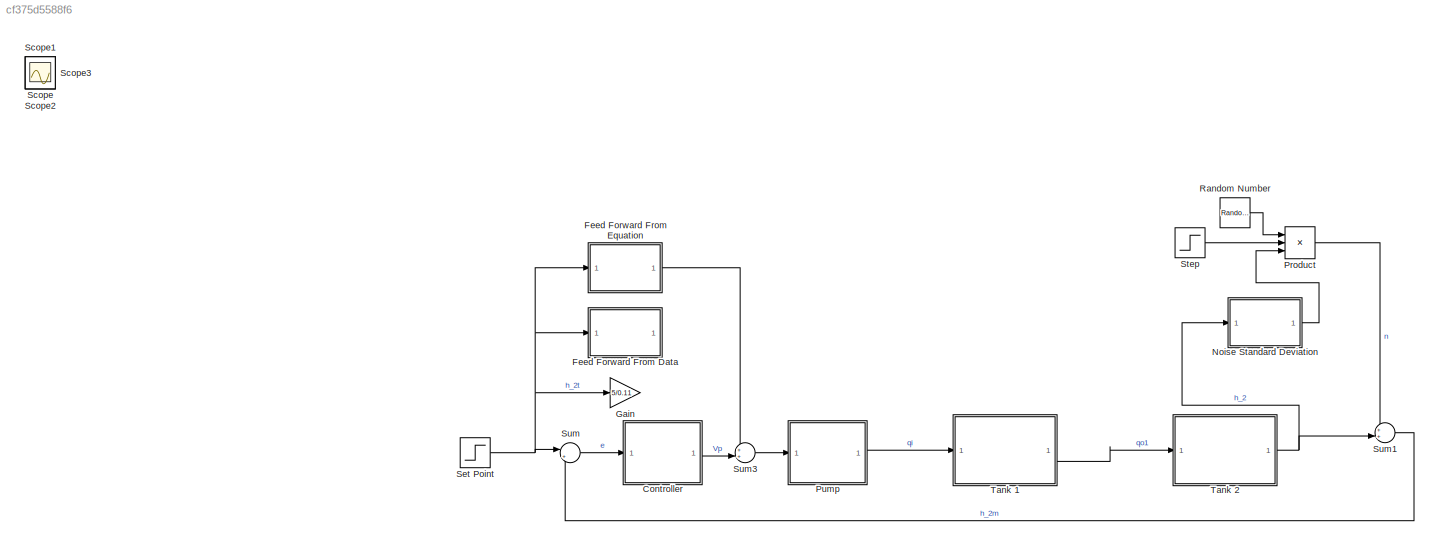
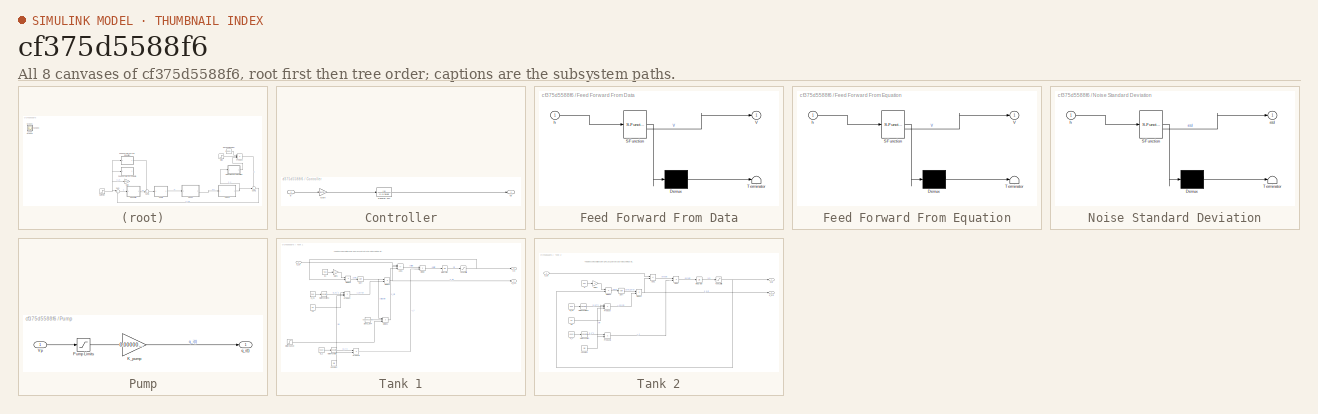
[diagram: thumbnail index - all 8 canvases of the model, root first then tree order]
MODEL slx_cf375d5588f6
KIND model
CONFIG AbsTol = auto
CONFIG EnableMultiTasking = off
CONFIG FixedStep = auto
CONFIG MaxStep = auto
CONFIG MinStep = auto
CONFIG RelTol = 1e-9
CONFIG SampleTimeConstraint = Unconstrained
CONFIG SolverName = VariableStepAuto
CONFIG StartTime = 0.0
CONFIG StopTime = 500
BLOCK [SubSystem] Controller
BLOCK [Gain] Controller/Gain
  Gain = 6.047e-3
BLOCK [TransferFcn] Controller/Transfer Fcn
  Denominator = [1 0.3648]
BLOCK [Outport] Controller/Vp
BLOCK [Inport] Controller/e
BLOCK [SubSystem] Feed Forward From Data
  ErrorFcn = Stateflow.Translate.translate
  PermitHierarchicalResolution = ExplicitOnly
  SFBlockType = MATLAB Function
  TreatAsAtomicUnit = on
BLOCK [Demux] Feed Forward From Data/ Demux 
  Outputs = 1
BLOCK [S-Function] Feed Forward From Data/ SFunction 
  EnableBusSupport = on
  FunctionName = sf_sfun
  PortCounts = [1 2]
  SFcnIsStateOwnerBlock = off
  SFunctionDeploymentMode = off
  Tag = Stateflow S-Function 2
BLOCK [Terminator] Feed Forward From Data/ Terminator 
BLOCK [Outport] Feed Forward From Data/V
BLOCK [Inport] Feed Forward From Data/h
BLOCK [SubSystem] Feed Forward From Equation
  ErrorFcn = Stateflow.Translate.translate
  PermitHierarchicalResolution = ExplicitOnly
  SFBlockType = MATLAB Function
  TreatAsAtomicUnit = on
BLOCK [Demux] Feed Forward From Equation/ Demux 
  Outputs = 1
BLOCK [S-Function] Feed Forward From Equation/ SFunction 
  EnableBusSupport = on
  FunctionName = sf_sfun
  PortCounts = [1 2]
  SFcnIsStateOwnerBlock = off
  SFunctionDeploymentMode = off
  Tag = Stateflow S-Function 1
BLOCK [Terminator] Feed Forward From Equation/ Terminator 
BLOCK [Outport] Feed Forward From Equation/V
BLOCK [Inport] Feed Forward From Equation/h
BLOCK [Gain] Gain
  Gain = 5/0.11
BLOCK [SubSystem] Noise Standard Deviation
  ErrorFcn = Stateflow.Translate.translate
  PermitHierarchicalResolution = ExplicitOnly
  SFBlockType = MATLAB Function
  TreatAsAtomicUnit = on
BLOCK [Demux] Noise Standard Deviation/ Demux 
  Outputs = 1
BLOCK [S-Function] Noise Standard Deviation/ SFunction 
  EnableBusSupport = on
  FunctionName = sf_sfun
  PortCounts = [1 2]
  SFcnIsStateOwnerBlock = off
  SFunctionDeploymentMode = off
  Tag = Stateflow S-Function 3
BLOCK [Terminator] Noise Standard Deviation/ Terminator 
BLOCK [Inport] Noise Standard Deviation/h
BLOCK [Outport] Noise Standard Deviation/std
BLOCK [Product] Product
  Inputs = 3
BLOCK [SubSystem] Pump
BLOCK [Gain] Pump/K_pump
  Gain = 0.0000035
BLOCK [Saturate] Pump/Pump Limits
  LowerLimit = 0
  UpperLimit = 12
BLOCK [Inport] Pump/Vp
BLOCK [Outport] Pump/q_i(t)
BLOCK [RandomNumber] Random Number
  SampleTime = 0.1
  Variance = 0.000001
BLOCK [Scope] Scope
  Floating = off
  IOType = viewer
  NumInputPorts = 1
  ScopeSpecificationString = Simulink.scopes.TimeScopeBlockCfg('CurrentConfiguration', extmgr.ConfigurationSet(extmgr.Configuration('Core','General UI',true),extmgr.Configuration('Core','Source UI',true),extmgr.Configuration('Sources','WiredSimulink',true,'DataLoggingVariableName','ScopeData1'),extmgr.Configuration('Visuals','Time Domain',true,'SerializedDisplays',{struct('MinYLimReal','-0.00016','MaxYLimReal','0.00148','YLab...<+1503ch>
BLOCK [Scope] Scope1
  Floating = off
  IOType = viewer
  NumInputPorts = 1
  ScopeSpecificationString = Simulink.scopes.TimeScopeBlockCfg('CurrentConfiguration', extmgr.ConfigurationSet(extmgr.Configuration('Core','General UI',true),extmgr.Configuration('Core','Source UI',true),extmgr.Configuration('Sources','WiredSimulink',true,'DataLoggingVariableName','ScopeData1'),extmgr.Configuration('Visuals','Time Domain',true,'SerializedDisplays',{struct('MinYLimReal','-0.01242','MaxYLimReal','0.11176','YLab...<+1481ch>
BLOCK [Scope] Scope2
  Floating = off
  IOType = viewer
  NumInputPorts = 1
  ScopeSpecificationString = Simulink.scopes.TimeScopeBlockCfg('CurrentConfiguration', extmgr.ConfigurationSet(extmgr.Configuration('Core','General UI',true),extmgr.Configuration('Core','Source UI',true),extmgr.Configuration('Sources','WiredSimulink',true,'DataLoggingVariableName','ScopeData2'),extmgr.Configuration('Visuals','Time Domain',true,'SerializedDisplays',{struct('MinYLimReal','-0.0125','MaxYLimReal','0.1125','YLabel...<+1473ch>
BLOCK [Scope] Scope3
  Floating = off
  IOType = viewer
  NumInputPorts = 1
  ScopeSpecificationString = Simulink.scopes.TimeScopeBlockCfg('CurrentConfiguration', extmgr.ConfigurationSet(extmgr.Configuration('Core','General UI',true),extmgr.Configuration('Core','Source UI',true),extmgr.Configuration('Sources','WiredSimulink',true,'DataLoggingVariableName','ScopeData3'),extmgr.Configuration('Visuals','Time Domain',true,'SerializedDisplays',{struct('MinYLimReal','-0.000003','MaxYLimReal','0.000025','YL...<+1458ch>
BLOCK [Step] Set Point
  After = 0.1
  SampleTime = 0
BLOCK [Step] Step
  SampleTime = 0
  Time = 1000
BLOCK [Sum] Sum
  Inputs = |+-
BLOCK [Sum] Sum1
  Inputs = ++|
BLOCK [Sum] Sum3
  Inputs = ++|
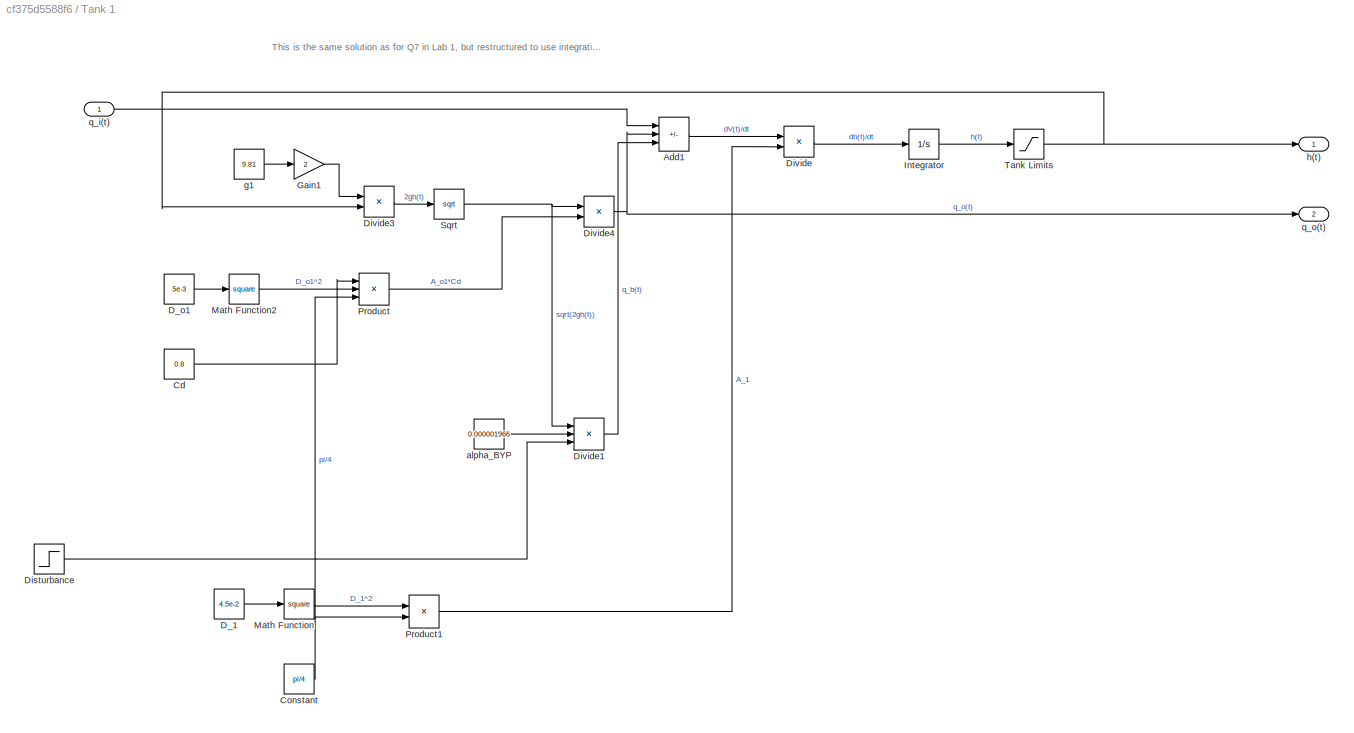
BLOCK [SubSystem] Tank 1
BLOCK [Sum] Tank 1/Add1
  IconShape = rectangular
  Inputs = +--
BLOCK [Constant] Tank 1/Cd
  Value = 0.8
BLOCK [Constant] Tank 1/Constant
  Value = pi/4
BLOCK [Constant] Tank 1/D_1
  Value = 4.5e-2
BLOCK [Constant] Tank 1/D_o1
  Value = 5e-3
BLOCK [Step] Tank 1/Disturbance
  SampleTime = 0
  Time = 100
BLOCK [Product] Tank 1/Divide
  Inputs = */
BLOCK [Product] Tank 1/Divide1
  Inputs = ***
BLOCK [Product] Tank 1/Divide3
  Inputs = **
BLOCK [Product] Tank 1/Divide4
  Inputs = **
BLOCK [Gain] Tank 1/Gain1
  Gain = 2
BLOCK [Integrator] Tank 1/Integrator
BLOCK [Math] Tank 1/Math Function
  Operator = square
BLOCK [Math] Tank 1/Math Function2
  Operator = square
BLOCK [Product] Tank 1/Product
  Inputs = 3
BLOCK [Product] Tank 1/Product1
BLOCK [Sqrt] Tank 1/Sqrt
BLOCK [Saturate] Tank 1/Tank Limits
  LowerLimit = 0
  UpperLimit = 0.25
BLOCK [Constant] Tank 1/alpha_BYP
  Value = 0.000001966
BLOCK [Constant] Tank 1/g1
  Value = 9.81
BLOCK [Outport] Tank 1/h(t)
BLOCK [Inport] Tank 1/q_i(t)
BLOCK [Outport] Tank 1/q_o(t)
  Port = 2
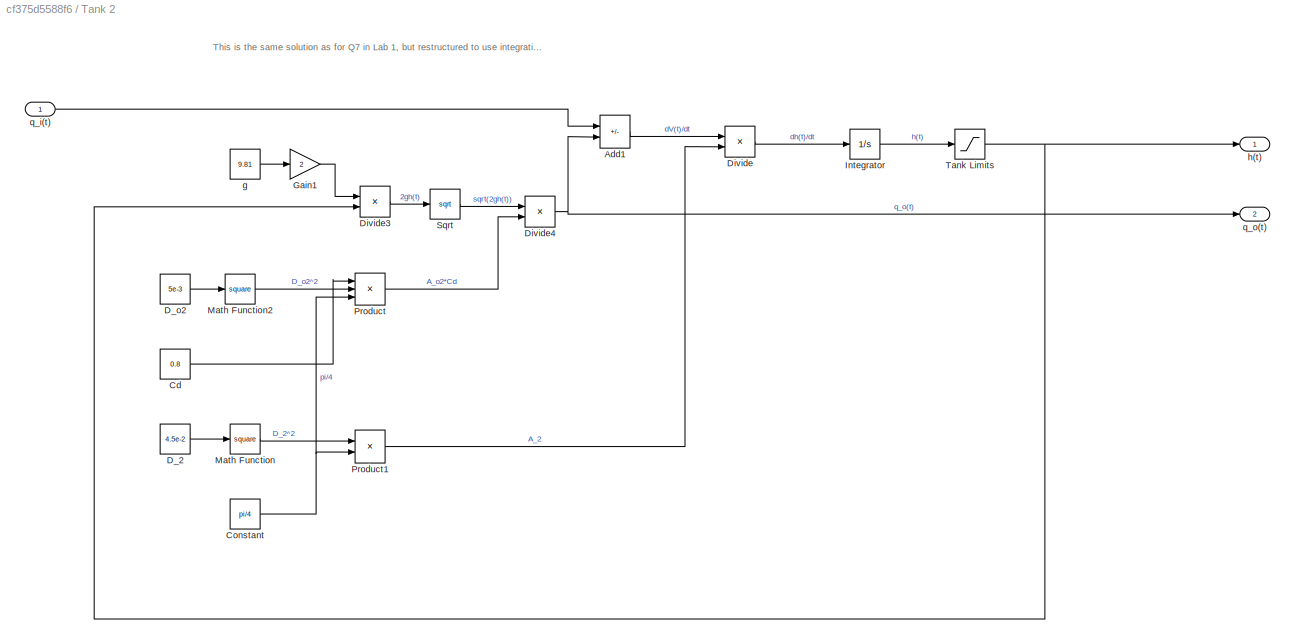
BLOCK [SubSystem] Tank 2
BLOCK [Sum] Tank 2/Add1
  IconShape = rectangular
  Inputs = +-
BLOCK [Constant] Tank 2/Cd
  Value = 0.8
BLOCK [Constant] Tank 2/Constant
  Value = pi/4
BLOCK [Constant] Tank 2/D_2
  Value = 4.5e-2
BLOCK [Constant] Tank 2/D_o2
  Value = 5e-3
BLOCK [Product] Tank 2/Divide
  Inputs = */
BLOCK [Product] Tank 2/Divide3
  Inputs = **
BLOCK [Product] Tank 2/Divide4
  Inputs = **
BLOCK [Gain] Tank 2/Gain1
  Gain = 2
BLOCK [Integrator] Tank 2/Integrator
BLOCK [Math] Tank 2/Math Function
  Operator = square
BLOCK [Math] Tank 2/Math Function2
  Operator = square
BLOCK [Product] Tank 2/Product
  Inputs = 3
BLOCK [Product] Tank 2/Product1
BLOCK [Sqrt] Tank 2/Sqrt
BLOCK [Saturate] Tank 2/Tank Limits
  LowerLimit = 0
  UpperLimit = 0.25
BLOCK [Constant] Tank 2/g
  Value = 9.81
BLOCK [Outport] Tank 2/h(t)
BLOCK [Inport] Tank 2/q_i(t)
BLOCK [Outport] Tank 2/q_o(t)
  Port = 2
ANNOTATION Tank 1: This is the same solution as for Q7 in Lab 1, but restructured to use integration instead of differentiation.
ANNOTATION Tank 2: This is the same solution as for Q7 in Lab 1, but restructured to use integration instead of differentiation.
LINE Controller/Gain:1 -> Controller/Transfer Fcn:1
LINE Controller/Transfer Fcn:1 -> Controller/Vp:1
LINE Controller/e:1 -> Controller/Gain:1
LINE Controller:1 -> Sum3:2
LINE Feed Forward From Equation:1 -> Sum3:1
LINE Noise Standard Deviation:1 -> Product:3
LINE Product:1 -> Sum1:1
LINE Pump/K_pump:1 -> Pump/q_i(t):1
LINE Pump/Pump Limits:1 -> Pump/K_pump:1
LINE Pump/Vp:1 -> Pump/Pump Limits:1
LINE Pump:1 -> Tank 1:1
LINE Random Number:1 -> Product:1
NET Set Point:1 -> Feed Forward From Data:1, Feed Forward From Equation:1, Gain:1, Sum:1
LINE Step:1 -> Product:2
LINE Sum1:1 -> Sum:2
LINE Sum3:1 -> Pump:1
LINE Sum:1 -> Controller:1
LINE Tank 1/Add1:1 -> Tank 1/Divide:1
LINE Tank 1/Cd:1 -> Tank 1/Product:1
NET Tank 1/Constant:1 -> Tank 1/Product1:2, Tank 1/Product:3
LINE Tank 1/D_1:1 -> Tank 1/Math Function:1
LINE Tank 1/D_o1:1 -> Tank 1/Math Function2:1
LINE Tank 1/Disturbance:1 -> Tank 1/Divide1:3
LINE Tank 1/Divide1:1 -> Tank 1/Add1:3
LINE Tank 1/Divide3:1 -> Tank 1/Sqrt:1
NET Tank 1/Divide4:1 -> Tank 1/Add1:2, Tank 1/q_o(t):1
LINE Tank 1/Divide:1 -> Tank 1/Integrator:1
LINE Tank 1/Gain1:1 -> Tank 1/Divide3:1
LINE Tank 1/Integrator:1 -> Tank 1/Tank Limits:1
LINE Tank 1/Math Function2:1 -> Tank 1/Product:2
LINE Tank 1/Math Function:1 -> Tank 1/Product1:1
LINE Tank 1/Product1:1 -> Tank 1/Divide:2
LINE Tank 1/Product:1 -> Tank 1/Divide4:2
NET Tank 1/Sqrt:1 -> Tank 1/Divide1:1, Tank 1/Divide4:1
NET Tank 1/Tank Limits:1 -> Tank 1/Divide3:2, Tank 1/h(t):1
LINE Tank 1/alpha_BYP:1 -> Tank 1/Divide1:2
LINE Tank 1/g1:1 -> Tank 1/Gain1:1
LINE Tank 1/q_i(t):1 -> Tank 1/Add1:1
LINE Tank 1:2 -> Tank 2:1
LINE Tank 2/Add1:1 -> Tank 2/Divide:1
LINE Tank 2/Cd:1 -> Tank 2/Product:1
NET Tank 2/Constant:1 -> Tank 2/Product1:2, Tank 2/Product:3
LINE Tank 2/D_2:1 -> Tank 2/Math Function:1
LINE Tank 2/D_o2:1 -> Tank 2/Math Function2:1
LINE Tank 2/Divide3:1 -> Tank 2/Sqrt:1
NET Tank 2/Divide4:1 -> Tank 2/Add1:2, Tank 2/q_o(t):1
LINE Tank 2/Divide:1 -> Tank 2/Integrator:1
LINE Tank 2/Gain1:1 -> Tank 2/Divide3:1
LINE Tank 2/Integrator:1 -> Tank 2/Tank Limits:1
LINE Tank 2/Math Function2:1 -> Tank 2/Product:2
LINE Tank 2/Math Function:1 -> Tank 2/Product1:1
LINE Tank 2/Product1:1 -> Tank 2/Divide:2
LINE Tank 2/Product:1 -> Tank 2/Divide4:2
LINE Tank 2/Sqrt:1 -> Tank 2/Divide4:1
NET Tank 2/Tank Limits:1 -> Tank 2/Divide3:2, Tank 2/h(t):1
LINE Tank 2/g:1 -> Tank 2/Gain1:1
LINE Tank 2/q_i(t):1 -> Tank 2/Add1:1
NET Tank 2:1 -> Noise Standard Deviation:1, Sum1:2
note: NET lines group one-source signal fan-out (src -> all destinations, sorted); 1:1 wires keep LINE
CHART Feed Forward From Data states=1 transitions=1
  STATE_LABEL 'eML_blk_kernel()'
  STATE_LABEL 'SCRIPT:\nfunction V = feed_forward(h)\n    if h <= 0.063\n        V = 79.37*h;\n    elseif h <= 0.124\n        V = 32.79*h + 2.937;\n    else\n        V = 26.32*h + 3.73;\n    end\n    '
CHART Noise Standard Deviation states=1 transitions=1
  STATE_LABEL 'eML_blk_kernel()'
  STATE_LABEL 'SCRIPT:\nfunction std = std_height(h)\n    std = 3.9*h;\n'
CHART Feed Forward From Equation states=1 transitions=1
  STATE_LABEL 'eML_blk_kernel()'
  STATE_LABEL 'SCRIPT:\nfunction V = feed_forward(h)\n    V = 19.87*sqrt(h);\n    '
CHART  states=0 transitions=0
CHART  states=0 transitions=0
CHART  states=0 transitions=0
